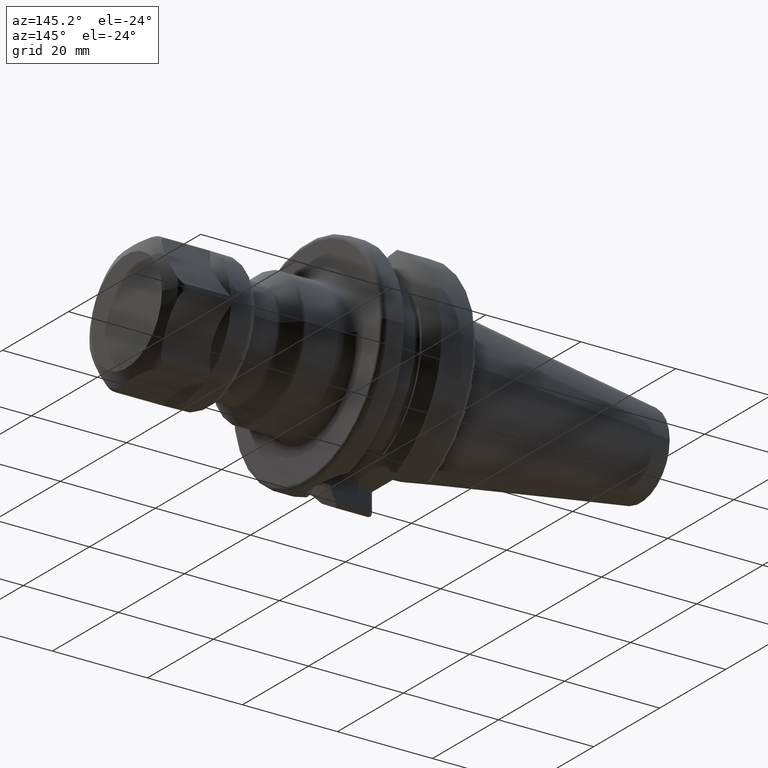
[diagram: clean part render]
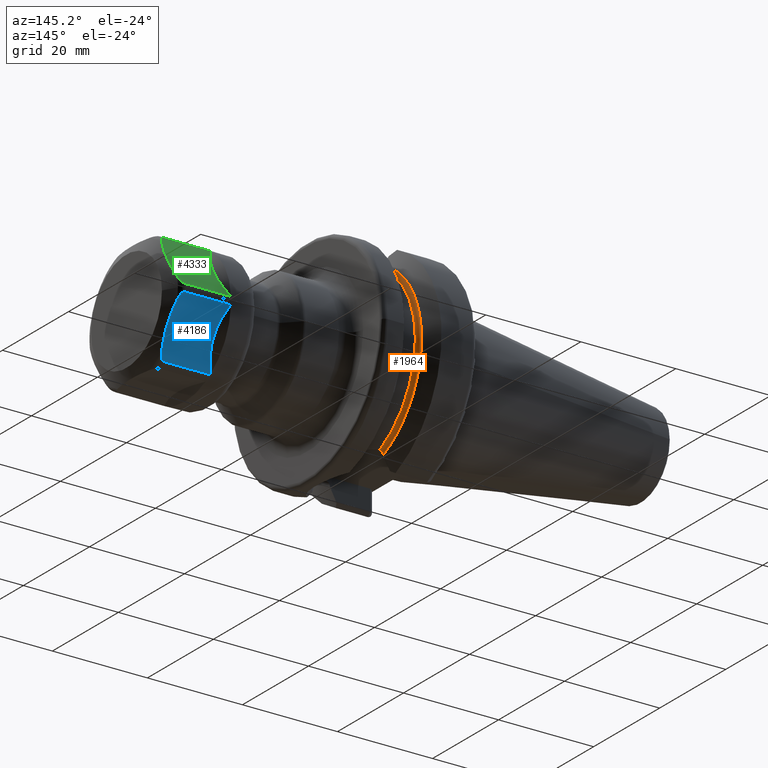
[diagram: same view with three faces highlighted in distinct colors, each labeled with its STEP entity id]
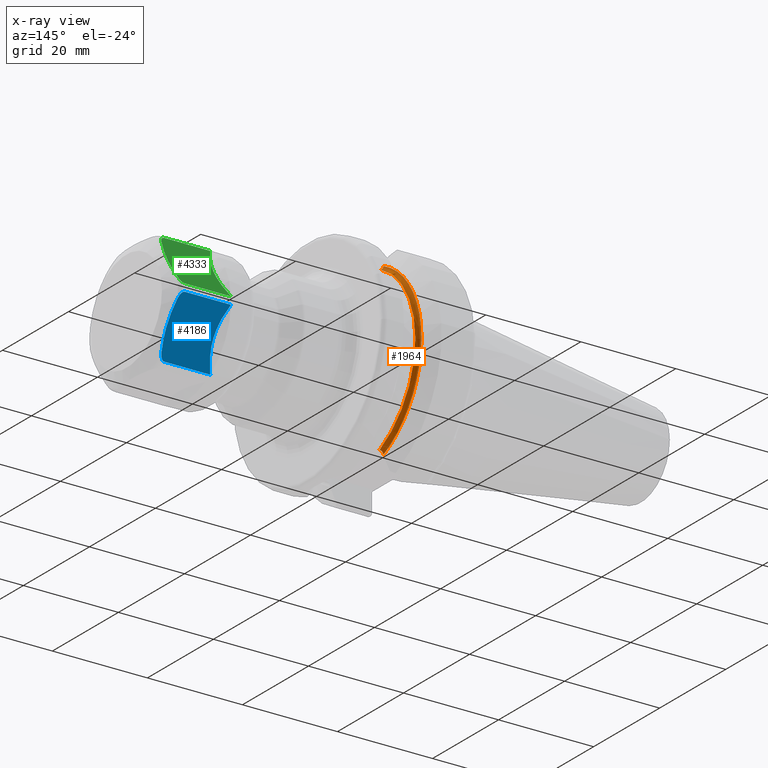
[diagram: x-ray of the same camera — body ghosted, the three highlighted faces saturated]
A machine part, auxiliary view with three faces highlighted in distinct colors.
The next image is the same camera in x-ray (body ghosted, the three faces saturated) — at least one of them is partly hidden behind the body in this view.
Their STEP definitions:

[orange] entity #1964 — the highlighted toroidal blend (fillet) surface has major radius 19.625 mm and minor (blend) radius 0.75 mm.
#341=CARTESIAN_POINT('',(1.15625E1,8.084736776791E0,-1.788232804335E1));
#342=CARTESIAN_POINT('',(1.15625E1,8.084736776791E0,-1.781359730062E1));
#343=CARTESIAN_POINT('',(1.157743606483E1,8.084008713788E0,-1.768050385507E1));
#344=CARTESIAN_POINT('',(1.164702451808E1,8.080196327678E0,-1.748544180816E1));
#345=CARTESIAN_POINT('',(1.175695528065E1,8.072931861565E0,-1.732053584298E1));
#346=CARTESIAN_POINT('',(1.190535493158E1,8.060719513235E0,-1.718877876759E1));
#347=CARTESIAN_POINT('',(1.208874148617E1,8.041810725138E0,-1.710274000837E1));
#348=CARTESIAN_POINT('',(1.223427404262E1,8.023119067298E0,-1.708494487053E1));
#349=CARTESIAN_POINT('',(1.23125E1,8.011817443627E0,-1.709024301319E1));
#414=CARTESIAN_POINT('',(1.23125E1,0.E0,0.E0));
#415=DIRECTION('',(-1.E0,0.E0,0.E0));
#416=DIRECTION('',(0.E0,4.244671493312E-1,9.054433384473E-1));
#417=AXIS2_PLACEMENT_3D('',#414,#415,#416);
#452=CARTESIAN_POINT('',(1.15625E1,0.E0,0.E0));
#453=DIRECTION('',(-1.E0,0.E0,0.E0));
#454=DIRECTION('',(0.E0,4.119611096454E-1,9.112014289605E-1));
#455=AXIS2_PLACEMENT_3D('',#452,#453,#454);
#496=CARTESIAN_POINT('',(1.23125E1,8.011817443627E0,1.709024301319E1));
#497=CARTESIAN_POINT('',(1.223412033661E1,8.023141273833E0,1.708493446022E1));
#498=CARTESIAN_POINT('',(1.208831797670E1,8.041863754075E0,1.710280413489E1));
#499=CARTESIAN_POINT('',(1.190448533030E1,8.060802307436E0,1.718929563694E1));
#500=CARTESIAN_POINT('',(1.175607673362E1,8.072995940587E0,1.732154273478E1));
#501=CARTESIAN_POINT('',(1.164652640216E1,8.080224902242E0,1.748652481923E1));
#502=CARTESIAN_POINT('',(1.157735932460E1,8.084012208743E0,1.768105664530E1));
#503=CARTESIAN_POINT('',(1.15625E1,8.084736776791E0,1.781380327923E1));
#504=CARTESIAN_POINT('',(1.15625E1,8.084736776791E0,1.788232804335E1));
#1224=CARTESIAN_POINT('',(1.15625E1,8.084736776791E0,1.788232804335E1));
#1225=CARTESIAN_POINT('',(1.15625E1,8.084736776791E0,-1.788232804335E1));
#1226=VERTEX_POINT('',#1224);
#1227=VERTEX_POINT('',#1225);
#1232=CARTESIAN_POINT('',(1.23125E1,8.011817443627E0,1.709024301319E1));
#1233=CARTESIAN_POINT('',(1.23125E1,8.011817443627E0,-1.709024301319E1));
#1234=VERTEX_POINT('',#1232);
#1235=VERTEX_POINT('',#1233);
#1951=CARTESIAN_POINT('',(1.23125E1,0.E0,0.E0));
#1952=DIRECTION('',(1.E0,0.E0,0.E0));
#1953=DIRECTION('',(0.E0,-1.E0,0.E0));
#1954=AXIS2_PLACEMENT_3D('',#1951,#1952,#1953);
#1955=TOROIDAL_SURFACE('',#1954,1.9625E1,7.5E-1);
#1957=ORIENTED_EDGE('',*,*,#1956,.T.);
#1958=ORIENTED_EDGE('',*,*,#1844,.T.);
#1959=ORIENTED_EDGE('',*,*,#1928,.F.);
#1961=ORIENTED_EDGE('',*,*,#1960,.T.);
#1962=EDGE_LOOP('',(#1957,#1958,#1959,#1961));
#1963=FACE_OUTER_BOUND('',#1962,.F.);
#1964=ADVANCED_FACE('',(#1963),#1955,.F.);
#350=B_SPLINE_CURVE_WITH_KNOTS('',3,(#341,#342,#343,#344,#345,#346,#347,#348,
#349),.UNSPECIFIED.,.F.,.F.,(4,1,1,1,1,1,4),(0.E0,1.666666666667E-1,
3.333333333333E-1,5.E-1,6.666666666667E-1,8.333333333333E-1,1.E0),
.UNSPECIFIED.);
#418=CIRCLE('',#417,1.8875E1);
#456=CIRCLE('',#455,1.9625E1);
#505=B_SPLINE_CURVE_WITH_KNOTS('',3,(#496,#497,#498,#499,#500,#501,#502,#503,
#504),.UNSPECIFIED.,.F.,.F.,(4,1,1,1,1,1,4),(0.E0,1.666666666667E-1,
3.333333333333E-1,5.E-1,6.666666666667E-1,8.333333333333E-1,1.E0),
.UNSPECIFIED.);
#1844=EDGE_CURVE('',#1227,#1235,#350,.T.);
#1928=EDGE_CURVE('',#1234,#1235,#418,.T.);
#1956=EDGE_CURVE('',#1226,#1227,#456,.T.);
#1960=EDGE_CURVE('',#1234,#1226,#505,.T.);

[blue] entity #4186 — the highlighted planar face has unit normal (0, -0.866, 0.5).
#3375=CARTESIAN_POINT('',(1.628445554338E1,8.446209258471E0,-1.037073643297E1));
#3376=CARTESIAN_POINT('',(1.644888995402E1,8.846497582803E0,-9.677416717550E0));
#3377=CARTESIAN_POINT('',(1.670318968294E1,9.643182651782E0,-8.297517700447E0));
#3378=CARTESIAN_POINT('',(1.683288207547E1,1.082561227532E1,-6.249489516108E0));
#3379=CARTESIAN_POINT('',(1.670310415631E1,1.200772406709E1,-4.202011832539E0));
#3380=CARTESIAN_POINT('',(1.644884551611E1,1.280424568854E1,-2.822395914862E0));
#3381=CARTESIAN_POINT('',(1.628445554338E1,1.320442583614E1,-2.129263567031E0));
#3478=CARTESIAN_POINT('',(1.520192378865E1,7.672937494076E0,-1.171008241696E1));
#3479=CARTESIAN_POINT('',(1.529096662636E1,7.672937494076E0,-1.171008241696E1));
#3480=CARTESIAN_POINT('',(1.546146335283E1,7.693355425503E0,-1.167471752234E1));
#3481=CARTESIAN_POINT('',(1.570142638899E1,7.779918012653E0,-1.152478672336E1));
#3482=CARTESIAN_POINT('',(1.590512360841E1,7.910907250754E0,-1.129790670773E1));
#3483=CARTESIAN_POINT('',(1.607010427330E1,8.073198101160E0,-1.101681070922E1));
#3484=CARTESIAN_POINT('',(1.619774346523E1,8.257304148875E0,-1.069792968060E1));
#3485=CARTESIAN_POINT('',(1.625821277607E1,8.382325590146E0,-1.048138619228E1));
#3486=CARTESIAN_POINT('',(1.628445554338E1,8.446209258471E0,-1.037073643297E1));
#3578=CARTESIAN_POINT('',(1.628445554338E1,1.320442583614E1,-2.129263567031E0));
#3579=CARTESIAN_POINT('',(1.625780514735E1,1.326930180905E1,-2.016895085765E0));
#3580=CARTESIAN_POINT('',(1.619635457926E1,1.339611855140E1,-1.797242044761E0));
#3581=CARTESIAN_POINT('',(1.606561669937E1,1.358313235992E1,-1.473324626685E0));
#3582=CARTESIAN_POINT('',(1.589737600801E1,1.374600758383E1,-1.191216463575E0));
#3583=CARTESIAN_POINT('',(1.569295978880E1,1.387456556661E1,
-9.685475056944E-1));
#3584=CARTESIAN_POINT('',(1.545738513995E1,1.395784419192E1,
-8.243046954560E-1));
#3585=CARTESIAN_POINT('',(1.528945671766E1,1.397769760054E1,
-7.899175830396E-1));
#3586=CARTESIAN_POINT('',(1.520192378865E1,1.397769760054E1,
-7.899175830396E-1));
#3598=CARTESIAN_POINT('',(6.999950425434E0,1.082840653407E1,-6.254661294811E0));
#3599=CARTESIAN_POINT('',(6.999899958524E0,1.077432860406E1,-6.348327017167E0));
#3600=CARTESIAN_POINT('',(7.011775962653E0,1.065819380374E1,-6.534820425900E0));
#3601=CARTESIAN_POINT('',(6.991325810989E0,1.047927131496E1,-6.850614652808E0));
#3602=CARTESIAN_POINT('',(6.965875493282E0,1.028572172362E1,-7.184273784827E0));
#3603=CARTESIAN_POINT('',(6.923112050200E0,1.007749255007E1,-7.545360283168E0));
#3604=CARTESIAN_POINT('',(6.862169693591E0,9.852189075297E0,-7.935483982019E0));
#3605=CARTESIAN_POINT('',(6.778646239743E0,9.608964406991E0,-8.356791941354E0));
#3606=CARTESIAN_POINT('',(6.668369561038E0,9.346143650123E0,-8.812002307409E0));
#3607=CARTESIAN_POINT('',(6.525682255052E0,9.060940232784E0,-9.305992793055E0));
#3608=CARTESIAN_POINT('',(6.345211979745E0,8.752438632745E0,-9.840327071372E0));
#3609=CARTESIAN_POINT('',(6.121528541569E0,8.419939946990E0,-1.041625268089E1));
#3610=CARTESIAN_POINT('',(5.848516446776E0,8.061815949678E0,-1.103646383744E1));
#3611=CARTESIAN_POINT('',(5.629525372219E0,7.805411018904E0,-1.148076368250E1));
#3612=CARTESIAN_POINT('',(5.510293500412E0,7.672991304169E0,-1.171012135635E1));
#3614=DIRECTION('',(9.999999999765E-1,-5.552223046371E-6,4.017836804348E-6));
#3615=VECTOR('',#3614,9.691630288463E0);
#3616=CARTESIAN_POINT('',(5.510293500412E0,7.672991304169E0,-1.171012135635E1));
#3617=LINE('',#3616,#3615);
#3618=DIRECTION('',(-1.E0,0.E0,0.E0));
#3619=VECTOR('',#3618,9.691378545098E0);
#3620=CARTESIAN_POINT('',(1.520192378865E1,1.397769760054E1,
-7.899175830396E-1));
#3621=LINE('',#3620,#3619);
#3622=CARTESIAN_POINT('',(5.510545243549E0,1.397769760054E1,
-7.899175830396E-1));
#3623=CARTESIAN_POINT('',(5.630051696380E0,1.384496653656E1,-1.019814529580E0));
#3624=CARTESIAN_POINT('',(5.849219067794E0,1.358812148425E1,-1.464683200361E0));
#3625=CARTESIAN_POINT('',(6.121621766702E0,1.323077708934E1,-2.083621890890E0));
#3626=CARTESIAN_POINT('',(6.344885483102E0,1.289890686935E1,-2.658437816683E0));
#3627=CARTESIAN_POINT('',(6.524958742412E0,1.259122391373E1,-3.191360912721E0));
#3628=CARTESIAN_POINT('',(6.667826642150E0,1.230595892689E1,-3.685452183153E0));
#3629=CARTESIAN_POINT('',(6.778840876992E0,1.204150256921E1,-4.143512168335E0));
#3630=CARTESIAN_POINT('',(6.862586643318E0,1.179732865128E1,-4.566403431305E0));
#3631=CARTESIAN_POINT('',(6.923414903333E0,1.157213997825E1,-4.956554992074E0));
#3632=CARTESIAN_POINT('',(6.966082455114E0,1.136371940666E1,-5.317127028992E0));
#3633=CARTESIAN_POINT('',(6.991466653647E0,1.117115632264E1,-5.652234666066E0));
#3634=CARTESIAN_POINT('',(7.011781659473E0,1.098886522708E1,-5.962080720191E0));
#3635=CARTESIAN_POINT('',(7.000000287852E0,1.088183671953E1,-6.162117498938E0));
#3636=CARTESIAN_POINT('',(6.999950425434E0,1.082840653407E1,-6.254661294811E0));
#3922=VERTEX_POINT('',#3375);
#3923=VERTEX_POINT('',#3381);
#3934=VERTEX_POINT('',#3586);
#3935=VERTEX_POINT('',#3478);
#3950=CARTESIAN_POINT('',(5.510084439007E0,1.397815769182E1,
-7.899436528792E-1));
#3951=CARTESIAN_POINT('',(5.510084439007E0,7.673076419476E0,-1.171029438310E1));
#3952=VERTEX_POINT('',#3950);
#3953=VERTEX_POINT('',#3951);
#3966=VERTEX_POINT('',#3636);
#4170=CARTESIAN_POINT('',(1.78E1,1.443375672974E1,0.E0));
#4171=DIRECTION('',(0.E0,-8.660254037844E-1,5.E-1));
#4172=DIRECTION('',(0.E0,-5.E-1,-8.660254037844E-1));
#4173=AXIS2_PLACEMENT_3D('',#4170,#4171,#4172);
#4174=PLANE('',#4173);
#4176=ORIENTED_EDGE('',*,*,#4175,.T.);
#4177=ORIENTED_EDGE('',*,*,#4056,.T.);
#4178=ORIENTED_EDGE('',*,*,#4081,.T.);
#4179=ORIENTED_EDGE('',*,*,#3995,.T.);
#4180=ORIENTED_EDGE('',*,*,#4160,.T.);
#4181=ORIENTED_EDGE('',*,*,#4060,.T.);
#4183=ORIENTED_EDGE('',*,*,#4182,.T.);
#4184=EDGE_LOOP('',(#4176,#4177,#4178,#4179,#4180,#4181,#4183));
#4185=FACE_OUTER_BOUND('',#4184,.F.);
#4186=ADVANCED_FACE('',(#4185),#4174,.F.);
#3382=B_SPLINE_CURVE_WITH_KNOTS('',3,(#3375,#3376,#3377,#3378,#3379,#3380,
#3381),.UNSPECIFIED.,.F.,.F.,(4,1,1,1,4),(0.E0,2.5E-1,5.E-1,7.5E-1,1.E0),
.UNSPECIFIED.);
#3487=B_SPLINE_CURVE_WITH_KNOTS('',3,(#3478,#3479,#3480,#3481,#3482,#3483,#3484,
#3485,#3486),.UNSPECIFIED.,.F.,.F.,(4,1,1,1,1,1,4),(0.E0,1.666666666667E-1,
3.333333333333E-1,5.E-1,6.666666666667E-1,8.333333333333E-1,1.E0),
.UNSPECIFIED.);
#3587=B_SPLINE_CURVE_WITH_KNOTS('',3,(#3578,#3579,#3580,#3581,#3582,#3583,#3584,
#3585,#3586),.UNSPECIFIED.,.F.,.F.,(4,1,1,1,1,1,4),(0.E0,1.666666666667E-1,
3.333333333333E-1,5.E-1,6.666666666667E-1,8.333333333333E-1,1.E0),
.UNSPECIFIED.);
#3613=B_SPLINE_CURVE_WITH_KNOTS('',3,(#3598,#3599,#3600,#3601,#3602,#3603,#3604,
#3605,#3606,#3607,#3608,#3609,#3610,#3611,#3612),.UNSPECIFIED.,.F.,.F.,(4,1,1,1,
1,1,1,1,1,1,1,1,4),(0.E0,8.333333333333E-2,1.666666666667E-1,2.5E-1,
3.333333333333E-1,4.166666666667E-1,5.E-1,5.833333333333E-1,6.666666666667E-1,
7.5E-1,8.333333333333E-1,9.166666666667E-1,1.E0),.UNSPECIFIED.);
#3637=B_SPLINE_CURVE_WITH_KNOTS('',3,(#3622,#3623,#3624,#3625,#3626,#3627,#3628,
#3629,#3630,#3631,#3632,#3633,#3634,#3635,#3636),.UNSPECIFIED.,.F.,.F.,(4,1,1,1,
1,1,1,1,1,1,1,1,4),(0.E0,8.333333333333E-2,1.666666666667E-1,2.5E-1,
3.333333333333E-1,4.166666666667E-1,5.E-1,5.833333333333E-1,6.666666666667E-1,
7.5E-1,8.333333333333E-1,9.166666666667E-1,1.E0),.UNSPECIFIED.);
#3995=EDGE_CURVE('',#3922,#3923,#3382,.T.);
#4056=EDGE_CURVE('',#3953,#3935,#3617,.T.);
#4060=EDGE_CURVE('',#3934,#3952,#3621,.T.);
#4081=EDGE_CURVE('',#3935,#3922,#3487,.T.);
#4160=EDGE_CURVE('',#3923,#3934,#3587,.T.);
#4175=EDGE_CURVE('',#3966,#3953,#3613,.T.);
#4182=EDGE_CURVE('',#3952,#3966,#3637,.T.);

[green] entity #4333 — the highlighted planar face has unit normal (0, -0.866, -0.5).
#3568=CARTESIAN_POINT('',(1.628445554338E1,8.446209258471E0,1.037073643297E1));
#3569=CARTESIAN_POINT('',(1.625780514735E1,8.381333285564E0,1.048310491424E1));
#3570=CARTESIAN_POINT('',(1.619635457926E1,8.254516543212E0,1.070275795524E1));
#3571=CARTESIAN_POINT('',(1.606561669937E1,8.067502734690E0,1.102667537332E1));
#3572=CARTESIAN_POINT('',(1.589737600801E1,7.904627510779E0,1.130878353642E1));
#3573=CARTESIAN_POINT('',(1.569295978880E1,7.776069528006E0,1.153145249431E1));
#3574=CARTESIAN_POINT('',(1.545738513995E1,7.692790902686E0,1.167569530454E1));
#3575=CARTESIAN_POINT('',(1.528945671766E1,7.672937494076E0,1.171008241696E1));
#3576=CARTESIAN_POINT('',(1.520192378865E1,7.672937494076E0,1.171008241696E1));
#3588=CARTESIAN_POINT('',(1.520192378865E1,1.397769760054E1,7.899175830396E-1));
#3589=CARTESIAN_POINT('',(1.529096662636E1,1.397769760054E1,7.899175830396E-1));
#3590=CARTESIAN_POINT('',(1.546146335283E1,1.395727966911E1,8.252824776573E-1));
#3591=CARTESIAN_POINT('',(1.570142638899E1,1.387071708196E1,9.752132766351E-1));
#3592=CARTESIAN_POINT('',(1.590512360841E1,1.373972784386E1,1.202093292271E0));
#3593=CARTESIAN_POINT('',(1.607010427330E1,1.357743699345E1,1.483189290778E0));
#3594=CARTESIAN_POINT('',(1.619774346523E1,1.339333094574E1,1.802070319401E0));
#3595=CARTESIAN_POINT('',(1.625821277607E1,1.326830950447E1,2.018613807717E0));
#3596=CARTESIAN_POINT('',(1.628445554338E1,1.320442583614E1,2.129263567031E0));
#3714=CARTESIAN_POINT('',(1.628445554338E1,1.320442583614E1,2.129263567031E0));
#3715=CARTESIAN_POINT('',(1.644888995402E1,1.280413751181E1,2.822583282450E0));
#3716=CARTESIAN_POINT('',(1.670318968294E1,1.200745244283E1,4.202482299553E0));
#3717=CARTESIAN_POINT('',(1.683288207547E1,1.082502281929E1,6.250510483892E0));
#3718=CARTESIAN_POINT('',(1.670310415631E1,9.642911027525E0,8.297988167461E0));
#3719=CARTESIAN_POINT('',(1.644884551611E1,8.846389406075E0,9.677604085138E0));
#3720=CARTESIAN_POINT('',(1.628445554338E1,8.446209258471E0,1.037073643297E1));
#3790=CARTESIAN_POINT('',(7.000039031264E0,1.082881644383E1,6.253790003492E0));
#3791=CARTESIAN_POINT('',(7.000075582821E0,1.088735665650E1,6.152395380865E0));
#3792=CARTESIAN_POINT('',(7.011205771334E0,1.100473216025E1,5.934673248259E0));
#3793=CARTESIAN_POINT('',(6.987996658477E0,1.120486434789E1,5.593830595229E0));
#3794=CARTESIAN_POINT('',(6.956638399386E0,1.141905853984E1,5.221282210140E0));
#3795=CARTESIAN_POINT('',(6.903873725767E0,1.165297325874E1,4.816546215967E0));
#3796=CARTESIAN_POINT('',(6.827821383196E0,1.190701126441E1,4.376427910632E0));
#3797=CARTESIAN_POINT('',(6.722112339936E0,1.218444052276E1,3.895936445870E0));
#3798=CARTESIAN_POINT('',(6.581048683960E0,1.248623822182E1,3.373198645110E0));
#3799=CARTESIAN_POINT('',(6.398331411068E0,1.281358169264E1,2.806228425439E0));
#3800=CARTESIAN_POINT('',(6.166237790524E0,1.316917147159E1,2.190316500779E0));
#3801=CARTESIAN_POINT('',(5.877330326820E0,1.355442841934E1,1.523076033452E0));
#3802=CARTESIAN_POINT('',(5.640658742658E0,1.383319980347E1,1.040120365997E0));
#3803=CARTESIAN_POINT('',(5.510591546294E0,1.397766007566E1,7.899078348962E-1));
#3805=DIRECTION('',(9.999999999920E-1,3.872004235276E-6,1.005862061417E-6));
#3806=VECTOR('',#3805,9.691332242430E0);
#3807=CARTESIAN_POINT('',(5.510591546294E0,1.397766007566E1,7.899078348962E-1));
#3808=LINE('',#3807,#3806);
#3809=DIRECTION('',(-1.E0,0.E0,0.E0));
#3810=VECTOR('',#3809,9.691561833754E0);
#3811=CARTESIAN_POINT('',(1.520192378865E1,7.672937494076E0,1.171008241696E1));
#3812=LINE('',#3811,#3810);
#3813=CARTESIAN_POINT('',(5.510361954892E0,7.672937494076E0,1.171008241696E1));
#3814=CARTESIAN_POINT('',(5.629022113127E0,7.804721435643E0,1.148182593454E1));
#3815=CARTESIAN_POINT('',(5.847031072329E0,8.060060452879E0,1.103956577419E1));
#3816=CARTESIAN_POINT('',(6.119330516163E0,8.416883959130E0,1.042152937409E1));
#3817=CARTESIAN_POINT('',(6.342750898976E0,8.748537296977E0,9.847088788207E0));
#3818=CARTESIAN_POINT('',(6.523315544029E0,9.056573416611E0,9.313555153309E0));
#3819=CARTESIAN_POINT('',(6.666301688344E0,9.341615133094E0,8.819846272818E0));
#3820=CARTESIAN_POINT('',(6.777051420605E0,9.604740487601E0,8.364107796237E0));
#3821=CARTESIAN_POINT('',(6.860837325227E0,9.847842065136E0,7.943013633077E0));
#3822=CARTESIAN_POINT('',(6.922024696473E0,1.007286358579E1,7.553376438208E0));
#3823=CARTESIAN_POINT('',(6.965159615564E0,1.028141918376E1,7.191731378999E0));
#3824=CARTESIAN_POINT('',(6.991035805538E0,1.047610219758E1,6.856083665268E0));
#3825=CARTESIAN_POINT('',(7.011750570816E0,1.065732496285E1,6.536400165341E0));
#3826=CARTESIAN_POINT('',(7.000005172310E0,1.077458864680E1,6.347715303145E0));
#3827=CARTESIAN_POINT('',(7.000039031264E0,1.082881644383E1,6.253790003492E0));
#3918=VERTEX_POINT('',#3714);
#3919=VERTEX_POINT('',#3720);
#3930=VERTEX_POINT('',#3576);
#3931=VERTEX_POINT('',#3588);
#3954=CARTESIAN_POINT('',(5.510095784573E0,7.673083408015E0,1.171030504395E1));
#3955=CARTESIAN_POINT('',(5.510095784573E0,1.397816374626E1,7.899439973725E-1));
#3956=VERTEX_POINT('',#3954);
#3957=VERTEX_POINT('',#3955);
#3962=VERTEX_POINT('',#3827);
#4319=CARTESIAN_POINT('',(1.78E1,7.216878364870E0,1.25E1));
#4320=DIRECTION('',(0.E0,-8.660254037844E-1,-5.E-1));
#4321=DIRECTION('',(0.E0,5.E-1,-8.660254037844E-1));
#4322=AXIS2_PLACEMENT_3D('',#4319,#4320,#4321);
#4323=PLANE('',#4322);
#4324=ORIENTED_EDGE('',*,*,#4312,.T.);
#4325=ORIENTED_EDGE('',*,*,#4301,.T.);
#4326=ORIENTED_EDGE('',*,*,#4165,.T.);
#4327=ORIENTED_EDGE('',*,*,#4237,.T.);
#4328=ORIENTED_EDGE('',*,*,#4145,.T.);
#4329=ORIENTED_EDGE('',*,*,#4282,.T.);
#4330=ORIENTED_EDGE('',*,*,#4314,.T.);
#4331=EDGE_LOOP('',(#4324,#4325,#4326,#4327,#4328,#4329,#4330));
#4332=FACE_OUTER_BOUND('',#4331,.F.);
#4333=ADVANCED_FACE('',(#4332),#4323,.F.);
#3577=B_SPLINE_CURVE_WITH_KNOTS('',3,(#3568,#3569,#3570,#3571,#3572,#3573,#3574,
#3575,#3576),.UNSPECIFIED.,.F.,.F.,(4,1,1,1,1,1,4),(0.E0,1.666666666667E-1,
3.333333333333E-1,5.E-1,6.666666666667E-1,8.333333333333E-1,1.E0),
.UNSPECIFIED.);
#3597=B_SPLINE_CURVE_WITH_KNOTS('',3,(#3588,#3589,#3590,#3591,#3592,#3593,#3594,
#3595,#3596),.UNSPECIFIED.,.F.,.F.,(4,1,1,1,1,1,4),(0.E0,1.666666666667E-1,
3.333333333333E-1,5.E-1,6.666666666667E-1,8.333333333333E-1,1.E0),
.UNSPECIFIED.);
#3721=B_SPLINE_CURVE_WITH_KNOTS('',3,(#3714,#3715,#3716,#3717,#3718,#3719,
#3720),.UNSPECIFIED.,.F.,.F.,(4,1,1,1,4),(0.E0,2.5E-1,5.E-1,7.5E-1,1.E0),
.UNSPECIFIED.);
#3804=B_SPLINE_CURVE_WITH_KNOTS('',3,(#3790,#3791,#3792,#3793,#3794,#3795,#3796,
#3797,#3798,#3799,#3800,#3801,#3802,#3803),.UNSPECIFIED.,.F.,.F.,(4,1,1,1,1,1,1,
1,1,1,1,4),(0.E0,9.090909090909E-2,1.818181818182E-1,2.727272727273E-1,
3.636363636364E-1,4.545454545455E-1,5.454545454545E-1,6.363636363636E-1,
7.272727272727E-1,8.181818181818E-1,9.090909090909E-1,1.E0),.UNSPECIFIED.);
#3828=B_SPLINE_CURVE_WITH_KNOTS('',3,(#3813,#3814,#3815,#3816,#3817,#3818,#3819,
#3820,#3821,#3822,#3823,#3824,#3825,#3826,#3827),.UNSPECIFIED.,.F.,.F.,(4,1,1,1,
1,1,1,1,1,1,1,1,4),(0.E0,8.333333333333E-2,1.666666666667E-1,2.5E-1,
3.333333333333E-1,4.166666666667E-1,5.E-1,5.833333333333E-1,6.666666666667E-1,
7.5E-1,8.333333333333E-1,9.166666666667E-1,1.E0),.UNSPECIFIED.);
#4145=EDGE_CURVE('',#3919,#3930,#3577,.T.);
#4165=EDGE_CURVE('',#3931,#3918,#3597,.T.);
#4237=EDGE_CURVE('',#3918,#3919,#3721,.T.);
#4282=EDGE_CURVE('',#3930,#3956,#3812,.T.);
#4301=EDGE_CURVE('',#3957,#3931,#3808,.T.);
#4312=EDGE_CURVE('',#3962,#3957,#3804,.T.);
#4314=EDGE_CURVE('',#3956,#3962,#3828,.T.);